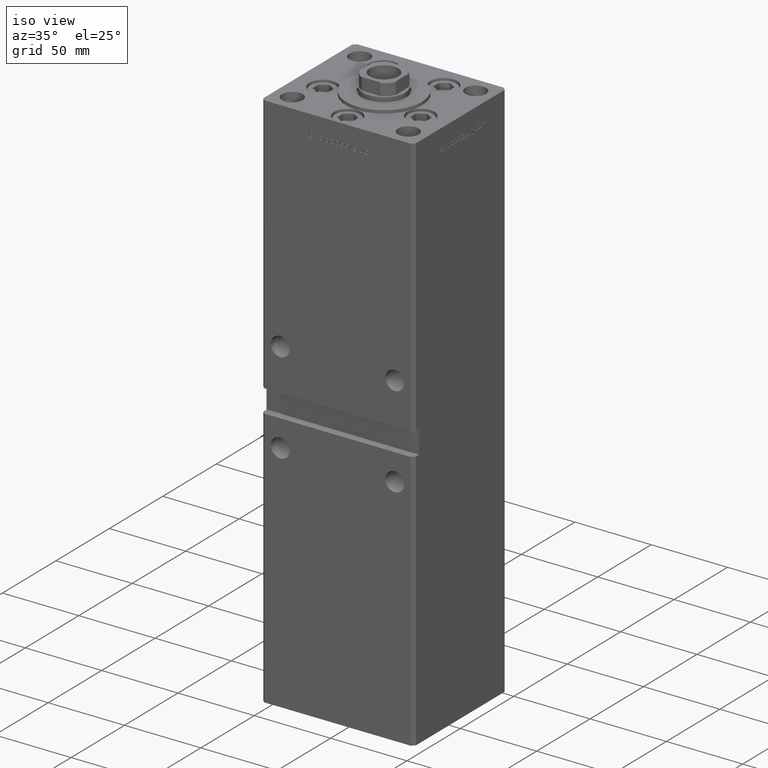
[diagram: clean part render]
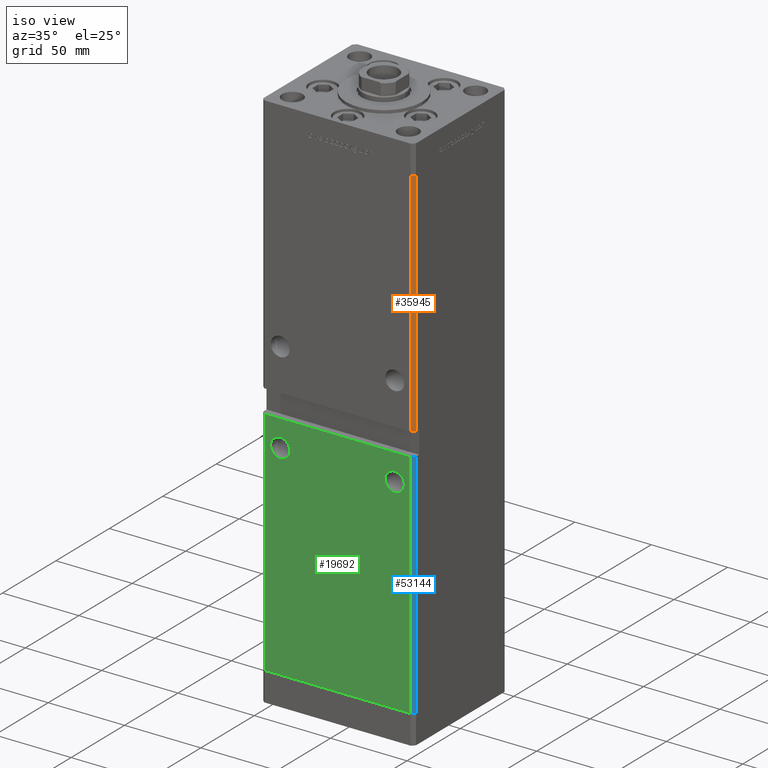
[diagram: same view with three faces highlighted in distinct colors, each labeled with its STEP entity id]
A machine part, iso view with three faces highlighted in distinct colors.
Their STEP definitions:

[orange] entity #35945 — the highlighted planar face has unit normal (0.7071, -0.7071, 0).
#6833 = CARTESIAN_POINT ( 'NONE',  ( 47.99999999999998579, -43.50000000000000000, 318.5000000000000000 ) ) ;
#8352 = DIRECTION ( 'NONE',  ( 0.7071067811865474617, 0.7071067811865474617, 0.000000000000000000 ) ) ;
#8728 = ORIENTED_EDGE ( 'NONE', *, *, #20456, .F. ) ;
#8866 = DIRECTION ( 'NONE',  ( -0.000000000000000000, -0.000000000000000000, -1.000000000000000000 ) ) ;
#8885 = FACE_OUTER_BOUND ( 'NONE', #17746, .T. ) ;
#12274 = CARTESIAN_POINT ( 'NONE',  ( 47.99999999999998579, -43.50000000000000000, 167.0000000000000000 ) ) ;
#15165 = EDGE_CURVE ( 'NONE', #33052, #45999, #26412, .T. ) ;
#16938 = PLANE ( 'NONE',  #39028 ) ;
#17746 = EDGE_LOOP ( 'NONE', ( #8728, #24397, #34484, #28580 ) ) ;
#19287 = LINE ( 'NONE', #32193, #20205 ) ;
#19860 = CARTESIAN_POINT ( 'NONE',  ( 49.99999999999998579, -41.49999999999999289, 318.5000000000000000 ) ) ;
#20205 = VECTOR ( 'NONE', #40787, 1000.000000000000000 ) ;
#20456 = EDGE_CURVE ( 'NONE', #21550, #23123, #29040, .T. ) ;
#21550 = VERTEX_POINT ( 'NONE', #44105 ) ;
#21759 = CARTESIAN_POINT ( 'NONE',  ( 49.99999999999998579, -41.49999999999999289, 318.5000000000000000 ) ) ;
#23123 = VERTEX_POINT ( 'NONE', #12274 ) ;
#24268 = VECTOR ( 'NONE', #8866, 1000.000000000000000 ) ;
#24397 = ORIENTED_EDGE ( 'NONE', *, *, #30240, .F. ) ;
#24448 = CARTESIAN_POINT ( 'NONE',  ( 49.99999999999998579, -41.49999999999999289, 318.5000000000000000 ) ) ;
#25222 = VECTOR ( 'NONE', #27465, 1000.000000000000114 ) ;
#26412 = LINE ( 'NONE', #42810, #25222 ) ;
#27465 = DIRECTION ( 'NONE',  ( -0.7071067811865474617, -0.7071067811865474617, 0.000000000000000000 ) ) ;
#28580 = ORIENTED_EDGE ( 'NONE', *, *, #42076, .T. ) ;
#29040 = LINE ( 'NONE', #33616, #48549 ) ;
#30240 = EDGE_CURVE ( 'NONE', #33052, #21550, #36812, .T. ) ;
#32193 = CARTESIAN_POINT ( 'NONE',  ( 47.99999999999998579, -43.50000000000000000, 318.5000000000000000 ) ) ;
#33052 = VERTEX_POINT ( 'NONE', #19860 ) ;
#33350 = DIRECTION ( 'NONE',  ( 0.7071067811865475727, -0.7071067811865475727, 0.000000000000000000 ) ) ;
#33616 = CARTESIAN_POINT ( 'NONE',  ( 49.99999999999998579, -41.49999999999999289, 167.0000000000000000 ) ) ;
#34484 = ORIENTED_EDGE ( 'NONE', *, *, #15165, .T. ) ;
#35945 = ADVANCED_FACE ( 'NONE', ( #8885 ), #16938, .T. ) ;
#36812 = LINE ( 'NONE', #24448, #24268 ) ;
#39028 = AXIS2_PLACEMENT_3D ( 'NONE', #21759, #33350, #8352 ) ;
#40787 = DIRECTION ( 'NONE',  ( -0.000000000000000000, -0.000000000000000000, -1.000000000000000000 ) ) ;
#42076 = EDGE_CURVE ( 'NONE', #45999, #23123, #19287, .T. ) ;
#42810 = CARTESIAN_POINT ( 'NONE',  ( 49.99999999999998579, -41.49999999999999289, 318.5000000000000000 ) ) ;
#44105 = CARTESIAN_POINT ( 'NONE',  ( 50.00000000000000000, -41.49999999999999289, 167.0000000000000000 ) ) ;
#45999 = VERTEX_POINT ( 'NONE', #6833 ) ;
#48549 = VECTOR ( 'NONE', #49995, 1000.000000000000114 ) ;
#49995 = DIRECTION ( 'NONE',  ( -0.7071067811865474617, -0.7071067811865474617, 0.000000000000000000 ) ) ;

[blue] entity #53144 — the highlighted planar face has unit normal (0.7071, -0.7071, 0).
#209 = DIRECTION ( 'NONE',  ( 0.7071067811865474617, 0.7071067811865474617, 0.000000000000000000 ) ) ;
#1004 = FACE_OUTER_BOUND ( 'NONE', #16319, .T. ) ;
#3133 = LINE ( 'NONE', #48541, #37157 ) ;
#7919 = CARTESIAN_POINT ( 'NONE',  ( 49.99999999999998579, -41.49999999999999289, 152.0000000000000000 ) ) ;
#8554 = DIRECTION ( 'NONE',  ( 0.7071067811865475727, -0.7071067811865475727, 0.000000000000000000 ) ) ;
#9098 = CARTESIAN_POINT ( 'NONE',  ( 47.99999999999998579, -43.50000000000000000, 318.5000000000000000 ) ) ;
#12131 = EDGE_CURVE ( 'NONE', #16245, #36729, #21044, .T. ) ;
#12394 = VECTOR ( 'NONE', #27796, 1000.000000000000114 ) ;
#12853 = EDGE_CURVE ( 'NONE', #36729, #14441, #3133, .T. ) ;
#14441 = VERTEX_POINT ( 'NONE', #46290 ) ;
#15040 = EDGE_CURVE ( 'NONE', #32246, #16245, #32913, .T. ) ;
#15933 = ORIENTED_EDGE ( 'NONE', *, *, #15040, .F. ) ;
#16245 = VERTEX_POINT ( 'NONE', #46434 ) ;
#16319 = EDGE_LOOP ( 'NONE', ( #15933, #41407, #53034, #45844 ) ) ;
#21044 = LINE ( 'NONE', #37432, #28595 ) ;
#21920 = CARTESIAN_POINT ( 'NONE',  ( 47.99999999999995737, -43.50000000000000000, 152.0000000000000000 ) ) ;
#22639 = VECTOR ( 'NONE', #33288, 1000.000000000000000 ) ;
#27796 = DIRECTION ( 'NONE',  ( 0.7071067811865474617, 0.7071067811865474617, 0.000000000000000000 ) ) ;
#28595 = VECTOR ( 'NONE', #49785, 1000.000000000000000 ) ;
#29690 = CARTESIAN_POINT ( 'NONE',  ( 49.99999999999998579, -41.49999999999999289, 0.000000000000000000 ) ) ;
#32020 = LINE ( 'NONE', #9098, #22639 ) ;
#32246 = VERTEX_POINT ( 'NONE', #21920 ) ;
#32913 = LINE ( 'NONE', #7919, #12394 ) ;
#33288 = DIRECTION ( 'NONE',  ( -0.000000000000000000, -0.000000000000000000, -1.000000000000000000 ) ) ;
#35107 = AXIS2_PLACEMENT_3D ( 'NONE', #37029, #8554, #209 ) ;
#36729 = VERTEX_POINT ( 'NONE', #29690 ) ;
#37029 = CARTESIAN_POINT ( 'NONE',  ( 49.99999999999998579, -41.49999999999999289, 318.5000000000000000 ) ) ;
#37157 = VECTOR ( 'NONE', #44236, 1000.000000000000114 ) ;
#37172 = EDGE_CURVE ( 'NONE', #32246, #14441, #32020, .T. ) ;
#37432 = CARTESIAN_POINT ( 'NONE',  ( 49.99999999999998579, -41.49999999999999289, 318.5000000000000000 ) ) ;
#41407 = ORIENTED_EDGE ( 'NONE', *, *, #37172, .T. ) ;
#44236 = DIRECTION ( 'NONE',  ( -0.7071067811865474617, -0.7071067811865474617, 0.000000000000000000 ) ) ;
#45844 = ORIENTED_EDGE ( 'NONE', *, *, #12131, .F. ) ;
#46290 = CARTESIAN_POINT ( 'NONE',  ( 47.99999999999998579, -43.50000000000000000, 0.000000000000000000 ) ) ;
#46434 = CARTESIAN_POINT ( 'NONE',  ( 50.00000000000000000, -41.49999999999999289, 152.0000000000000000 ) ) ;
#48541 = CARTESIAN_POINT ( 'NONE',  ( 49.99999999999998579, -41.49999999999999289, 0.000000000000000000 ) ) ;
#49785 = DIRECTION ( 'NONE',  ( -0.000000000000000000, -0.000000000000000000, -1.000000000000000000 ) ) ;
#49913 = PLANE ( 'NONE',  #35107 ) ;
#53034 = ORIENTED_EDGE ( 'NONE', *, *, #12853, .F. ) ;
#53144 = ADVANCED_FACE ( 'NONE', ( #1004 ), #49913, .T. ) ;

[green] entity #19692 — the highlighted planar face has unit normal (0, 1, 0).
#796 = CARTESIAN_POINT ( 'NONE',  ( -47.99999999999998579, -43.50000000000000000, 318.5000000000000000 ) ) ;
#1278 = CIRCLE ( 'NONE', #9011, 6.250000000000005329 ) ;
#1929 = EDGE_CURVE ( 'NONE', #34995, #22804, #25847, .T. ) ;
#2616 = EDGE_LOOP ( 'NONE', ( #41739, #20008 ) ) ;
#3301 = VERTEX_POINT ( 'NONE', #31754 ) ;
#3959 = CARTESIAN_POINT ( 'NONE',  ( -47.99999999999998579, -43.50000000000000000, 0.000000000000000000 ) ) ;
#4018 = ORIENTED_EDGE ( 'NONE', *, *, #39339, .T. ) ;
#4116 = AXIS2_PLACEMENT_3D ( 'NONE', #25878, #50607, #22381 ) ;
#4424 = DIRECTION ( 'NONE',  ( 0.000000000000000000, 1.000000000000000000, 0.000000000000000000 ) ) ;
#5329 = VERTEX_POINT ( 'NONE', #6654 ) ;
#6654 = CARTESIAN_POINT ( 'NONE',  ( -47.99999999999998579, -43.50000000000000000, 0.000000000000000000 ) ) ;
#7821 = DIRECTION ( 'NONE',  ( 0.000000000000000000, 1.000000000000000000, 0.000000000000000000 ) ) ;
#7828 = PLANE ( 'NONE',  #8200 ) ;
#8200 = AXIS2_PLACEMENT_3D ( 'NONE', #36582, #28505, #20451 ) ;
#8890 = DIRECTION ( 'NONE',  ( 1.000000000000000000, 0.000000000000000000, 0.000000000000000000 ) ) ;
#9011 = AXIS2_PLACEMENT_3D ( 'NONE', #47853, #7821, #31466 ) ;
#9098 = CARTESIAN_POINT ( 'NONE',  ( 47.99999999999998579, -43.50000000000000000, 318.5000000000000000 ) ) ;
#10319 = CARTESIAN_POINT ( 'NONE',  ( -37.50000000000000000, -43.50000000000000000, 140.7500000000000000 ) ) ;
#11476 = VERTEX_POINT ( 'NONE', #38156 ) ;
#13180 = LINE ( 'NONE', #29562, #29120 ) ;
#13835 = AXIS2_PLACEMENT_3D ( 'NONE', #36154, #4424, #40984 ) ;
#14441 = VERTEX_POINT ( 'NONE', #46290 ) ;
#15357 = FACE_BOUND ( 'NONE', #2616, .T. ) ;
#16323 = DIRECTION ( 'NONE',  ( 1.000000000000000000, 0.000000000000000000, 0.000000000000000000 ) ) ;
#17233 = ORIENTED_EDGE ( 'NONE', *, *, #31520, .T. ) ;
#17972 = DIRECTION ( 'NONE',  ( -0.000000000000000000, -0.000000000000000000, -1.000000000000000000 ) ) ;
#19349 = ORIENTED_EDGE ( 'NONE', *, *, #1929, .T. ) ;
#19692 = ADVANCED_FACE ( 'NONE', ( #15357, #44636, #49195 ), #7828, .F. ) ;
#20008 = ORIENTED_EDGE ( 'NONE', *, *, #35840, .T. ) ;
#20366 = CARTESIAN_POINT ( 'NONE',  ( 37.50000000000000000, -43.50000000000000000, 134.5000000000000000 ) ) ;
#20451 = DIRECTION ( 'NONE',  ( 0.000000000000000000, -0.000000000000000000, 1.000000000000000000 ) ) ;
#21878 = VECTOR ( 'NONE', #17972, 1000.000000000000000 ) ;
#21920 = CARTESIAN_POINT ( 'NONE',  ( 47.99999999999995737, -43.50000000000000000, 152.0000000000000000 ) ) ;
#22381 = DIRECTION ( 'NONE',  ( 0.000000000000000000, 0.000000000000000000, 1.000000000000000000 ) ) ;
#22639 = VECTOR ( 'NONE', #33288, 1000.000000000000000 ) ;
#22804 = VERTEX_POINT ( 'NONE', #46418 ) ;
#23863 = DIRECTION ( 'NONE',  ( 0.000000000000000000, 0.000000000000000000, 1.000000000000000000 ) ) ;
#24225 = ORIENTED_EDGE ( 'NONE', *, *, #37172, .F. ) ;
#24395 = DIRECTION ( 'NONE',  ( 0.000000000000000000, 1.000000000000000000, 0.000000000000000000 ) ) ;
#25847 = CIRCLE ( 'NONE', #13835, 6.250000000000005329 ) ;
#25878 = CARTESIAN_POINT ( 'NONE',  ( -37.50000000000000000, -43.50000000000000000, 134.5000000000000000 ) ) ;
#27290 = ORIENTED_EDGE ( 'NONE', *, *, #52863, .F. ) ;
#28145 = EDGE_LOOP ( 'NONE', ( #19349, #17233 ) ) ;
#28505 = DIRECTION ( 'NONE',  ( 0.000000000000000000, 1.000000000000000000, 0.000000000000000000 ) ) ;
#29120 = VECTOR ( 'NONE', #8890, 1000.000000000000000 ) ;
#29562 = CARTESIAN_POINT ( 'NONE',  ( -49.99999999999998579, -43.50000000000000000, 152.0000000000000000 ) ) ;
#30695 = CIRCLE ( 'NONE', #4116, 6.250000000000005329 ) ;
#31466 = DIRECTION ( 'NONE',  ( 0.000000000000000000, 0.000000000000000000, 1.000000000000000000 ) ) ;
#31520 = EDGE_CURVE ( 'NONE', #22804, #34995, #38873, .T. ) ;
#31754 = CARTESIAN_POINT ( 'NONE',  ( -47.99999999999998579, -43.50000000000000000, 152.0000000000000000 ) ) ;
#31838 = EDGE_LOOP ( 'NONE', ( #24225, #27290, #4018, #49581 ) ) ;
#32020 = LINE ( 'NONE', #9098, #22639 ) ;
#32246 = VERTEX_POINT ( 'NONE', #21920 ) ;
#32910 = AXIS2_PLACEMENT_3D ( 'NONE', #20366, #24395, #23863 ) ;
#33288 = DIRECTION ( 'NONE',  ( -0.000000000000000000, -0.000000000000000000, -1.000000000000000000 ) ) ;
#34995 = VERTEX_POINT ( 'NONE', #42961 ) ;
#35684 = LINE ( 'NONE', #3959, #50235 ) ;
#35840 = EDGE_CURVE ( 'NONE', #11476, #43398, #1278, .T. ) ;
#36154 = CARTESIAN_POINT ( 'NONE',  ( 37.50000000000000000, -43.50000000000000000, 134.5000000000000000 ) ) ;
#36582 = CARTESIAN_POINT ( 'NONE',  ( -47.99999999999998579, -43.50000000000000000, 318.5000000000000000 ) ) ;
#37172 = EDGE_CURVE ( 'NONE', #32246, #14441, #32020, .T. ) ;
#38156 = CARTESIAN_POINT ( 'NONE',  ( -37.50000000000000000, -43.50000000000000000, 128.2500000000000000 ) ) ;
#38873 = CIRCLE ( 'NONE', #32910, 6.250000000000005329 ) ;
#39339 = EDGE_CURVE ( 'NONE', #3301, #5329, #50234, .T. ) ;
#40984 = DIRECTION ( 'NONE',  ( 0.000000000000000000, 0.000000000000000000, 1.000000000000000000 ) ) ;
#41739 = ORIENTED_EDGE ( 'NONE', *, *, #48644, .T. ) ;
#42079 = EDGE_CURVE ( 'NONE', #5329, #14441, #35684, .T. ) ;
#42961 = CARTESIAN_POINT ( 'NONE',  ( 37.50000000000000000, -43.50000000000000000, 140.7500000000000000 ) ) ;
#43398 = VERTEX_POINT ( 'NONE', #10319 ) ;
#44636 = FACE_BOUND ( 'NONE', #28145, .T. ) ;
#46290 = CARTESIAN_POINT ( 'NONE',  ( 47.99999999999998579, -43.50000000000000000, 0.000000000000000000 ) ) ;
#46418 = CARTESIAN_POINT ( 'NONE',  ( 37.50000000000000000, -43.50000000000000000, 128.2500000000000000 ) ) ;
#47853 = CARTESIAN_POINT ( 'NONE',  ( -37.50000000000000000, -43.50000000000000000, 134.5000000000000000 ) ) ;
#48644 = EDGE_CURVE ( 'NONE', #43398, #11476, #30695, .T. ) ;
#49195 = FACE_OUTER_BOUND ( 'NONE', #31838, .T. ) ;
#49581 = ORIENTED_EDGE ( 'NONE', *, *, #42079, .T. ) ;
#50234 = LINE ( 'NONE', #796, #21878 ) ;
#50235 = VECTOR ( 'NONE', #16323, 1000.000000000000000 ) ;
#50607 = DIRECTION ( 'NONE',  ( 0.000000000000000000, 1.000000000000000000, 0.000000000000000000 ) ) ;
#52863 = EDGE_CURVE ( 'NONE', #3301, #32246, #13180, .T. ) ;